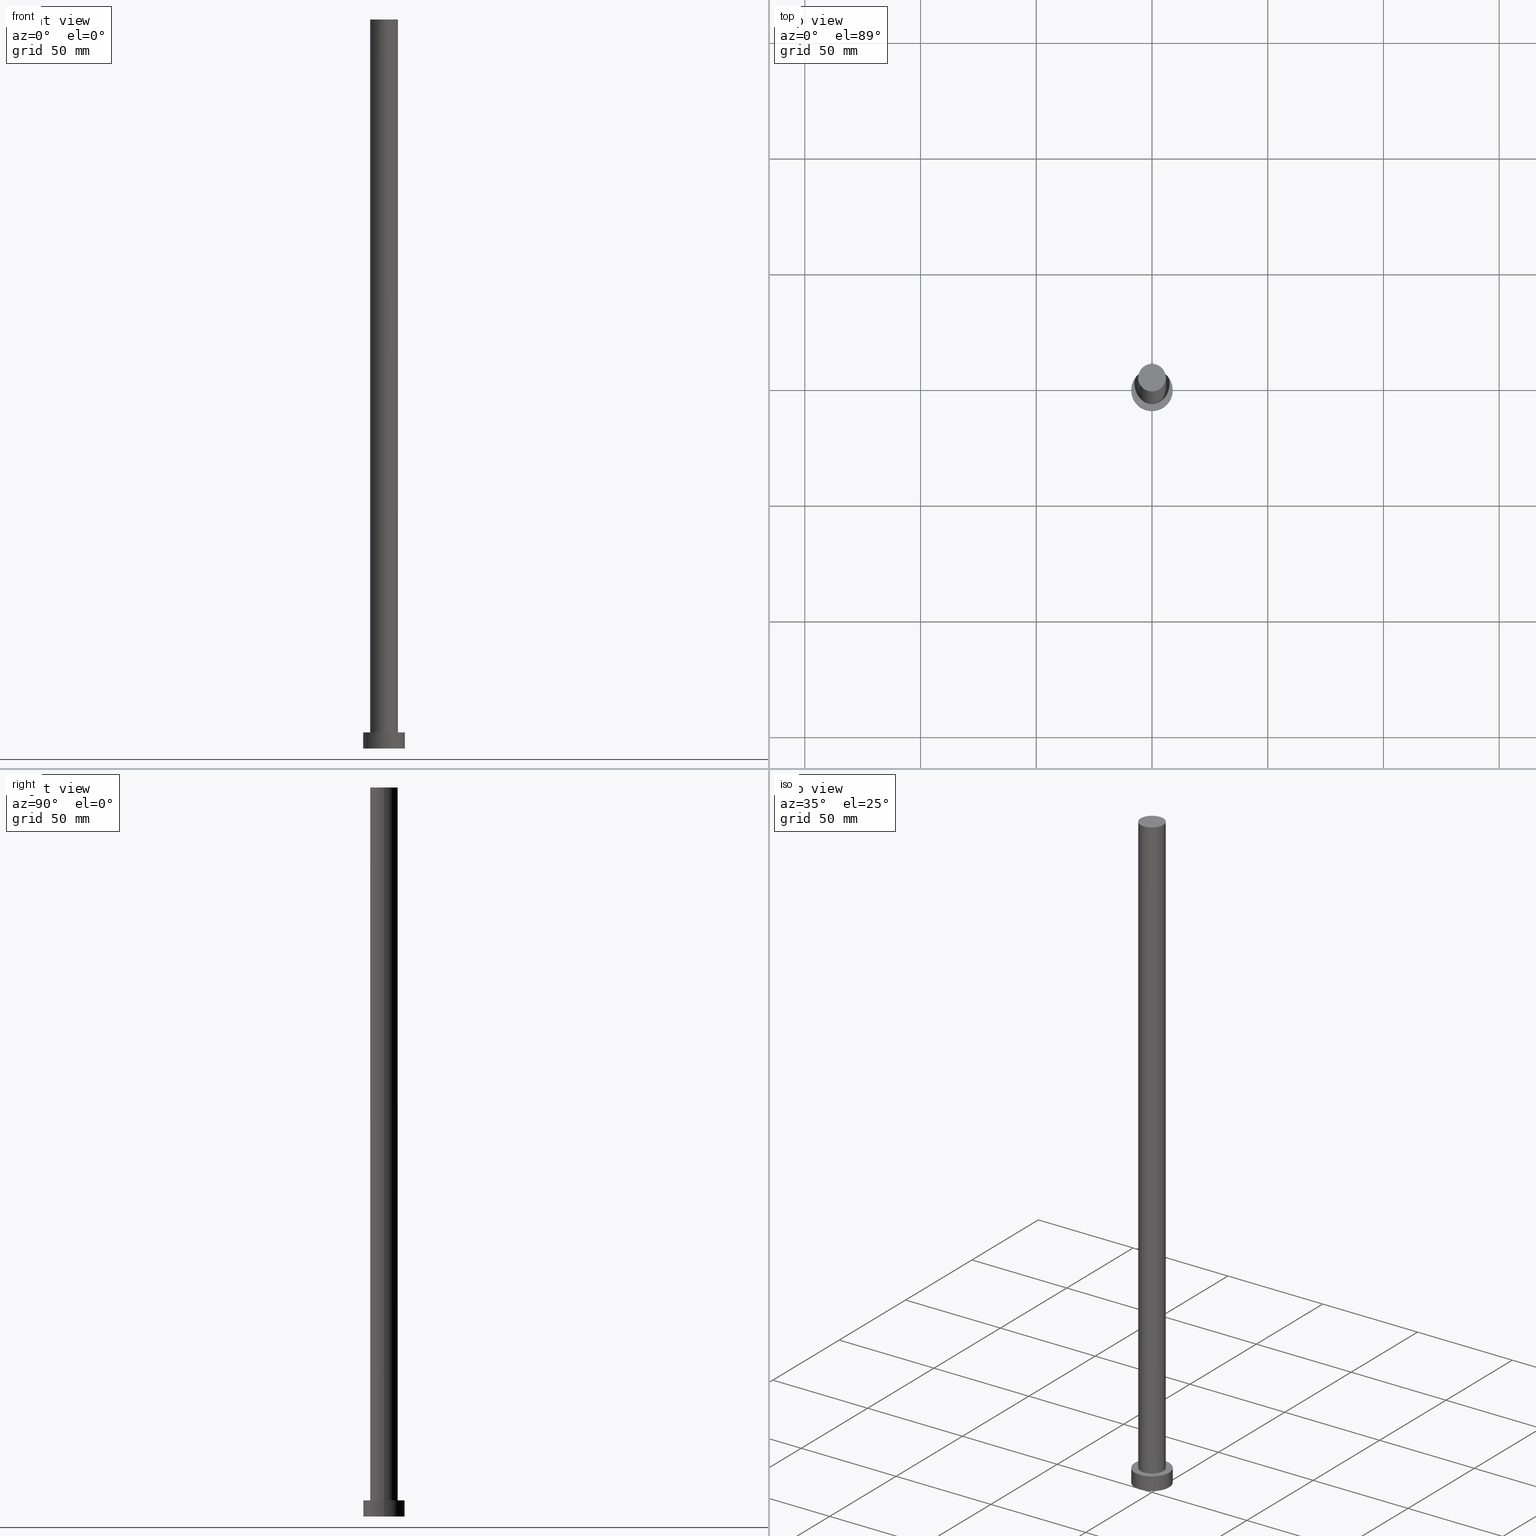
[diagram: canonical four-view strip — front | top / right | iso, engineering-drawing reading convention]
A machine part, canonical four-view strip (front | top / right | iso — engineering-drawing reading convention). The complete STEP part file that produces these views, byte-faithful:
ISO-10303-21;
HEADER;
FILE_DESCRIPTION (( 'STEP AP203' ),
    '1' );
FILE_NAME ('37f4.STEP',
    '2023-02-13T12:24:51',
    ( '' ),
    ( '' ),
    'SwSTEP 2.0',
    'SolidWorks 2019',
    '' );
FILE_SCHEMA (( 'CONFIG_CONTROL_DESIGN' ));
ENDSEC;

DATA;
#1 = APPROVAL_DATE_TIME ( #137, #232 ) ;
#2 = DIRECTION ( 'NONE',  ( 1.000000000000000000, 0.000000000000000000, 0.000000000000000000 ) ) ;
#3 = VERTEX_POINT ( 'NONE', #166 ) ;
#4 = CARTESIAN_POINT ( 'NONE',  ( 0.000000000000000000, 0.000000000000000000, 315.0000000000000000 ) ) ;
#5 = AXIS2_PLACEMENT_3D ( 'NONE', #197, #194, #216 ) ;
#6 = DIRECTION ( 'NONE',  ( 0.000000000000000000, 0.000000000000000000, 1.000000000000000000 ) ) ;
#7 = EDGE_CURVE ( 'NONE', #38, #24, #49, .T. ) ;
#8 = PERSON_AND_ORGANIZATION ( #89, #116 ) ;
#9 = FACE_OUTER_BOUND ( 'NONE', #26, .T. ) ;
#10 = PERSON_AND_ORGANIZATION_ROLE ( 'classification_officer' ) ;
#11 = CARTESIAN_POINT ( 'NONE',  ( 6.000000000000000888, 7.347880794884120722E-16, 315.0000000000000000 ) ) ;
#12 = EDGE_LOOP ( 'NONE', ( #167, #22, #139, #129 ) ) ;
#13 = AXIS2_PLACEMENT_3D ( 'NONE', #90, #233, #182 ) ;
#14 = DATE_TIME_ROLE ( 'classification_date' ) ;
#15 = CC_DESIGN_APPROVAL ( #40, ( #55 ) ) ;
#16 = DIRECTION ( 'NONE',  ( 0.000000000000000000, 0.000000000000000000, 1.000000000000000000 ) ) ;
#17 = FACE_OUTER_BOUND ( 'NONE', #65, .T. ) ;
#18 = CARTESIAN_POINT ( 'NONE',  ( -9.000000000000000000, 0.000000000000000000, 7.000000000000000000 ) ) ;
#19 = ORIENTED_EDGE ( 'NONE', *, *, #52, .F. ) ;
#20 = DIRECTION ( 'NONE',  ( 0.000000000000000000, 0.000000000000000000, 1.000000000000000000 ) ) ;
#21 = DATE_AND_TIME ( #120, #58 ) ;
#22 = ORIENTED_EDGE ( 'NONE', *, *, #217, .T. ) ;
#23 = CYLINDRICAL_SURFACE ( 'NONE', #161, 6.000000000000000888 ) ;
#24 = VERTEX_POINT ( 'NONE', #154 ) ;
#25 = DATE_TIME_ROLE ( 'creation_date' ) ;
#26 = EDGE_LOOP ( 'NONE', ( #144, #205, #230, #222 ) ) ;
#27 = CIRCLE ( 'NONE', #248, 9.000000000000000000 ) ;
#28 = DIRECTION ( 'NONE',  ( -0.000000000000000000, -0.000000000000000000, -1.000000000000000000 ) ) ;
#29 = ORIENTED_EDGE ( 'NONE', *, *, #52, .T. ) ;
#30 = SECURITY_CLASSIFICATION_LEVEL ( 'unclassified' ) ;
#31 = EDGE_CURVE ( 'NONE', #133, #38, #87, .T. ) ;
#32 = ADVANCED_FACE ( 'NONE', ( #210 ), #125, .T. ) ;
#33 = DIRECTION ( 'NONE',  ( 1.000000000000000000, 0.000000000000000000, 0.000000000000000000 ) ) ;
#34 = CARTESIAN_POINT ( 'NONE',  ( -6.000000000000000888, 0.000000000000000000, 315.0000000000000000 ) ) ;
#35 = PERSON_AND_ORGANIZATION ( #89, #116 ) ;
#36 = APPROVAL_DATE_TIME ( #228, #40 ) ;
#37 = LOCAL_TIME ( 13, 24, 51.00000000000000000, #147 ) ;
#38 = VERTEX_POINT ( 'NONE', #173 ) ;
#39 = CARTESIAN_POINT ( 'NONE',  ( 0.000000000000000000, 0.000000000000000000, 315.0000000000000000 ) ) ;
#40 = APPROVAL ( #81, 'NEUR�EN�' ) ;
#41 = DIRECTION ( 'NONE',  ( -1.000000000000000000, 0.000000000000000000, 0.000000000000000000 ) ) ;
#42 = ORIENTED_EDGE ( 'NONE', *, *, #79, .F. ) ;
#43 = DIRECTION ( 'NONE',  ( 0.000000000000000000, 0.000000000000000000, 1.000000000000000000 ) ) ;
#44 = ORIENTED_EDGE ( 'NONE', *, *, #97, .F. ) ;
#45 = AXIS2_PLACEMENT_3D ( 'NONE', #69, #20, #110 ) ;
#46 = FACE_OUTER_BOUND ( 'NONE', #212, .T. ) ;
#47 = ORIENTED_EDGE ( 'NONE', *, *, #51, .T. ) ;
#48 = DIRECTION ( 'NONE',  ( 1.000000000000000000, 0.000000000000000000, 0.000000000000000000 ) ) ;
#49 = CIRCLE ( 'NONE', #225, 9.000000000000000000 ) ;
#50 = CALENDAR_DATE ( 2023, 13, 2 ) ;
#51 = EDGE_CURVE ( 'NONE', #198, #231, #156, .T. ) ;
#52 = EDGE_CURVE ( 'NONE', #198, #3, #93, .T. ) ;
#53 = APPROVAL_STATUS ( 'not_yet_approved' ) ;
#54 = APPLICATION_PROTOCOL_DEFINITION ( 'international standard', 'config_control_design', 1994, #183 ) ;
#55 = PRODUCT_DEFINITION ( 'NEZN�M�', '', #68, #130 ) ;
#56 = APPLICATION_PROTOCOL_DEFINITION ( 'international standard', 'config_control_design', 1994, #95 ) ;
#57 = LINE ( 'NONE', #11, #170 ) ;
#58 = LOCAL_TIME ( 13, 24, 51.00000000000000000, #191 ) ;
#59 = DIRECTION ( 'NONE',  ( -0.000000000000000000, -0.000000000000000000, -1.000000000000000000 ) ) ;
#60 =( LENGTH_UNIT ( ) NAMED_UNIT ( * ) SI_UNIT ( .MILLI., .METRE. ) );
#61 = ORIENTED_EDGE ( 'NONE', *, *, #7, .F. ) ;
#62 = FACE_OUTER_BOUND ( 'NONE', #149, .T. ) ;
#63 = AXIS2_PLACEMENT_3D ( 'NONE', #121, #190, #199 ) ;
#64 = APPROVAL_PERSON_ORGANIZATION ( #35, #192, #250 ) ;
#65 = EDGE_LOOP ( 'NONE', ( #61, #66 ) ) ;
#66 = ORIENTED_EDGE ( 'NONE', *, *, #208, .F. ) ;
#67 = FACE_OUTER_BOUND ( 'NONE', #72, .T. ) ;
#68 = PRODUCT_DEFINITION_FORMATION_WITH_SPECIFIED_SOURCE ( 'LIBOVOLN�', '', #134, .NOT_KNOWN. ) ;
#69 = CARTESIAN_POINT ( 'NONE',  ( 0.000000000000000000, 0.000000000000000000, 7.000000000000000000 ) ) ;
#70 = PERSON_AND_ORGANIZATION ( #89, #116 ) ;
#71 = COORDINATED_UNIVERSAL_TIME_OFFSET ( 1, 0, .AHEAD. ) ;
#72 = EDGE_LOOP ( 'NONE', ( #200, #242 ) ) ;
#73 = CARTESIAN_POINT ( 'NONE',  ( 0.000000000000000000, 0.000000000000000000, 0.000000000000000000 ) ) ;
#74 = ADVANCED_FACE ( 'NONE', ( #17 ), #80, .F. ) ;
#75 = EDGE_LOOP ( 'NONE', ( #107, #44 ) ) ;
#76 = AXIS2_PLACEMENT_3D ( 'NONE', #73, #99, #186 ) ;
#77 = PERSON_AND_ORGANIZATION ( #89, #116 ) ;
#78 = LOCAL_TIME ( 13, 24, 51.00000000000000000, #184 ) ;
#79 = EDGE_CURVE ( 'NONE', #133, #209, #27, .T. ) ;
#80 = PLANE ( 'NONE',  #115 ) ;
#81 = APPROVAL_STATUS ( 'not_yet_approved' ) ;
#82 = CYLINDRICAL_SURFACE ( 'NONE', #255, 9.000000000000000000 ) ;
#83 = CIRCLE ( 'NONE', #13, 9.000000000000000000 ) ;
#84 = AXIS2_PLACEMENT_3D ( 'NONE', #241, #157, #48 ) ;
#85 = DIRECTION ( 'NONE',  ( 1.000000000000000000, 0.000000000000000000, -0.000000000000000000 ) ) ;
#86 = DIRECTION ( 'NONE',  ( -0.000000000000000000, -0.000000000000000000, -1.000000000000000000 ) ) ;
#87 = LINE ( 'NONE', #18, #122 ) ;
#88 = ADVANCED_FACE ( 'NONE', ( #62 ), #127, .T. ) ;
#89 = PERSON ( 'NEUR�EN�', 'NEUR�EN�', 'NEUR�EN�', ('NEUR�EN�'), ('NEUR�EN�'), ('NEUR�EN�') ) ;
#90 = CARTESIAN_POINT ( 'NONE',  ( 0.000000000000000000, 0.000000000000000000, 7.000000000000000000 ) ) ;
#91 = EDGE_CURVE ( 'NONE', #3, #198, #109, .T. ) ;
#92 = DIRECTION ( 'NONE',  ( -0.000000000000000000, -0.000000000000000000, -1.000000000000000000 ) ) ;
#93 = CIRCLE ( 'NONE', #143, 6.000000000000000888 ) ;
#94 = CLOSED_SHELL ( 'NONE', ( #32, #240, #88, #106, #74, #155, #247 ) ) ;
#95 = APPLICATION_CONTEXT ( 'configuration controlled 3d designs of mechanical parts and assemblies' ) ;
#96 = APPROVAL_STATUS ( 'not_yet_approved' ) ;
#97 = EDGE_CURVE ( 'NONE', #114, #231, #142, .T. ) ;
#98 = VECTOR ( 'NONE', #101, 1000.000000000000000 ) ;
#99 = DIRECTION ( 'NONE',  ( 0.000000000000000000, 0.000000000000000000, 1.000000000000000000 ) ) ;
#100 = CIRCLE ( 'NONE', #84, 6.000000000000000888 ) ;
#101 = DIRECTION ( 'NONE',  ( -0.000000000000000000, -0.000000000000000000, -1.000000000000000000 ) ) ;
#102 = EDGE_CURVE ( 'NONE', #209, #133, #83, .T. ) ;
#103 = DIRECTION ( 'NONE',  ( 1.000000000000000000, 0.000000000000000000, 0.000000000000000000 ) ) ;
#104 =( NAMED_UNIT ( * ) PLANE_ANGLE_UNIT ( ) SI_UNIT ( $, .RADIAN. ) );
#105 = CC_DESIGN_APPROVAL ( #232, ( #68 ) ) ;
#106 = ADVANCED_FACE ( 'NONE', ( #179, #67 ), #145, .T. ) ;
#107 = ORIENTED_EDGE ( 'NONE', *, *, #165, .F. ) ;
#108 = EDGE_LOOP ( 'NONE', ( #29, #168 ) ) ;
#109 = CIRCLE ( 'NONE', #243, 6.000000000000000888 ) ;
#110 = DIRECTION ( 'NONE',  ( 1.000000000000000000, 0.000000000000000000, 0.000000000000000000 ) ) ;
#111 = PRODUCT_RELATED_PRODUCT_CATEGORY ( 'detail', '', ( #134 ) ) ;
#112 = ORIENTED_EDGE ( 'NONE', *, *, #158, .F. ) ;
#113 = PERSON_AND_ORGANIZATION_ROLE ( 'creator' ) ;
#114 = VERTEX_POINT ( 'NONE', #163 ) ;
#115 = AXIS2_PLACEMENT_3D ( 'NONE', #124, #171, #85 ) ;
#116 = ORGANIZATION ( 'NEUR�EN�', 'NEUR�EN�', '' ) ;
#117 = CARTESIAN_POINT ( 'NONE',  ( -6.000000000000000888, 0.000000000000000000, 7.000000000000000000 ) ) ;
#118 = PERSON_AND_ORGANIZATION ( #89, #116 ) ;
#119 = CC_DESIGN_DATE_AND_TIME_ASSIGNMENT ( #136, #25, ( #55 ) ) ;
#120 = CALENDAR_DATE ( 2023, 13, 2 ) ;
#121 = CARTESIAN_POINT ( 'NONE',  ( 0.000000000000000000, 0.000000000000000000, 7.000000000000000000 ) ) ;
#122 = VECTOR ( 'NONE', #160, 1000.000000000000000 ) ;
#123 = PERSON_AND_ORGANIZATION_ROLE ( 'design_owner' ) ;
#124 = CARTESIAN_POINT ( 'NONE',  ( 0.000000000000000000, 0.000000000000000000, 0.000000000000000000 ) ) ;
#125 = CYLINDRICAL_SURFACE ( 'NONE', #202, 6.000000000000000888 ) ;
#126 = DIRECTION ( 'NONE',  ( -1.000000000000000000, 0.000000000000000000, 0.000000000000000000 ) ) ;
#127 = CYLINDRICAL_SURFACE ( 'NONE', #63, 9.000000000000000000 ) ;
#128 = FACE_OUTER_BOUND ( 'NONE', #108, .T. ) ;
#129 = ORIENTED_EDGE ( 'NONE', *, *, #51, .F. ) ;
#130 = DESIGN_CONTEXT ( 'detailed design', #95, 'design' ) ;
#131 = CALENDAR_DATE ( 2023, 13, 2 ) ;
#132 = DIRECTION ( 'NONE',  ( 1.000000000000000000, 0.000000000000000000, -0.000000000000000000 ) ) ;
#133 = VERTEX_POINT ( 'NONE', #146 ) ;
#134 = PRODUCT ( '37f4', '37f4', '', ( #169 ) ) ;
#135 = ORIENTED_EDGE ( 'NONE', *, *, #165, .T. ) ;
#136 = DATE_AND_TIME ( #236, #78 ) ;
#137 = DATE_AND_TIME ( #50, #37 ) ;
#138 = MANIFOLD_SOLID_BREP ( 'P�idat vysunut�m3', #94 ) ;
#139 = ORIENTED_EDGE ( 'NONE', *, *, #97, .T. ) ;
#140 = PERSON_AND_ORGANIZATION ( #89, #116 ) ;
#141 = CARTESIAN_POINT ( 'NONE',  ( 0.000000000000000000, 0.000000000000000000, 315.0000000000000000 ) ) ;
#142 = CIRCLE ( 'NONE', #45, 6.000000000000000888 ) ;
#143 = AXIS2_PLACEMENT_3D ( 'NONE', #39, #193, #103 ) ;
#144 = ORIENTED_EDGE ( 'NONE', *, *, #102, .F. ) ;
#145 = PLANE ( 'NONE',  #226 ) ;
#146 = CARTESIAN_POINT ( 'NONE',  ( -9.000000000000000000, 0.000000000000000000, 7.000000000000000000 ) ) ;
#147 = COORDINATED_UNIVERSAL_TIME_OFFSET ( 1, 0, .AHEAD. ) ;
#148 = DIRECTION ( 'NONE',  ( -1.000000000000000000, 0.000000000000000000, 0.000000000000000000 ) ) ;
#149 = EDGE_LOOP ( 'NONE', ( #112, #42, #218, #188 ) ) ;
#150 = LOCAL_TIME ( 13, 24, 51.00000000000000000, #152 ) ;
#151 = CC_DESIGN_PERSON_AND_ORGANIZATION_ASSIGNMENT ( #118, #10, ( #213 ) ) ;
#152 = COORDINATED_UNIVERSAL_TIME_OFFSET ( 1, 0, .AHEAD. ) ;
#153 = DIRECTION ( 'NONE',  ( 1.000000000000000000, 0.000000000000000000, 0.000000000000000000 ) ) ;
#154 = CARTESIAN_POINT ( 'NONE',  ( 9.000000000000000000, 1.102182119232617714E-15, 0.000000000000000000 ) ) ;
#155 = ADVANCED_FACE ( 'NONE', ( #46 ), #23, .T. ) ;
#156 = LINE ( 'NONE', #34, #180 ) ;
#157 = DIRECTION ( 'NONE',  ( 0.000000000000000000, 0.000000000000000000, 1.000000000000000000 ) ) ;
#158 = EDGE_CURVE ( 'NONE', #209, #24, #229, .T. ) ;
#159 = DIRECTION ( 'NONE',  ( 0.000000000000000000, 0.000000000000000000, 1.000000000000000000 ) ) ;
#160 = DIRECTION ( 'NONE',  ( -0.000000000000000000, -0.000000000000000000, -1.000000000000000000 ) ) ;
#161 = AXIS2_PLACEMENT_3D ( 'NONE', #4, #92, #148 ) ;
#162 = CC_DESIGN_PERSON_AND_ORGANIZATION_ASSIGNMENT ( #70, #204, ( #68 ) ) ;
#163 = CARTESIAN_POINT ( 'NONE',  ( 6.000000000000000888, 7.347880794884120722E-16, 7.000000000000000000 ) ) ;
#164 = APPROVAL_ROLE ( '' ) ;
#165 = EDGE_CURVE ( 'NONE', #231, #114, #100, .T. ) ;
#166 = CARTESIAN_POINT ( 'NONE',  ( 6.000000000000000888, 7.347880794884120722E-16, 315.0000000000000000 ) ) ;
#167 = ORIENTED_EDGE ( 'NONE', *, *, #91, .F. ) ;
#168 = ORIENTED_EDGE ( 'NONE', *, *, #91, .T. ) ;
#169 = MECHANICAL_CONTEXT ( 'NONE', #183, 'mechanical' ) ;
#170 = VECTOR ( 'NONE', #28, 1000.000000000000000 ) ;
#171 = DIRECTION ( 'NONE',  ( 0.000000000000000000, 0.000000000000000000, 1.000000000000000000 ) ) ;
#172 = APPROVAL_PERSON_ORGANIZATION ( #140, #40, #239 ) ;
#173 = CARTESIAN_POINT ( 'NONE',  ( -9.000000000000000000, 0.000000000000000000, 0.000000000000000000 ) ) ;
#174 = PLANE ( 'NONE',  #5 ) ;
#175 = CC_DESIGN_PERSON_AND_ORGANIZATION_ASSIGNMENT ( #77, #123, ( #134 ) ) ;
#176 =( NAMED_UNIT ( * ) SI_UNIT ( $, .STERADIAN. ) SOLID_ANGLE_UNIT ( ) );
#177 = CC_DESIGN_SECURITY_CLASSIFICATION ( #213, ( #68 ) ) ;
#178 = UNCERTAINTY_MEASURE_WITH_UNIT (LENGTH_MEASURE( 1.000000000000000082E-05 ), #60, 'distance_accuracy_value', 'NONE');
#179 = FACE_BOUND ( 'NONE', #75, .T. ) ;
#180 = VECTOR ( 'NONE', #59, 1000.000000000000000 ) ;
#181 = PERSON_AND_ORGANIZATION ( #89, #116 ) ;
#182 = DIRECTION ( 'NONE',  ( 1.000000000000000000, 0.000000000000000000, 0.000000000000000000 ) ) ;
#183 = APPLICATION_CONTEXT ( 'configuration controlled 3d designs of mechanical parts and assemblies' ) ;
#184 = COORDINATED_UNIVERSAL_TIME_OFFSET ( 1, 0, .AHEAD. ) ;
#185 = CARTESIAN_POINT ( 'NONE',  ( -6.000000000000000888, 0.000000000000000000, 315.0000000000000000 ) ) ;
#186 = DIRECTION ( 'NONE',  ( 1.000000000000000000, 0.000000000000000000, 0.000000000000000000 ) ) ;
#187 =( GEOMETRIC_REPRESENTATION_CONTEXT ( 3 ) GLOBAL_UNCERTAINTY_ASSIGNED_CONTEXT ( ( #178 ) ) GLOBAL_UNIT_ASSIGNED_CONTEXT ( ( #60, #104, #176 ) ) REPRESENTATION_CONTEXT ( 'NONE', 'WORKASPACE' ) );
#188 = ORIENTED_EDGE ( 'NONE', *, *, #7, .T. ) ;
#189 = CC_DESIGN_PERSON_AND_ORGANIZATION_ASSIGNMENT ( #245, #113, ( #55 ) ) ;
#190 = DIRECTION ( 'NONE',  ( -0.000000000000000000, -0.000000000000000000, -1.000000000000000000 ) ) ;
#191 = COORDINATED_UNIVERSAL_TIME_OFFSET ( 1, 0, .AHEAD. ) ;
#192 = APPROVAL ( #53, 'NEUR�EN�' ) ;
#193 = DIRECTION ( 'NONE',  ( 0.000000000000000000, 0.000000000000000000, 1.000000000000000000 ) ) ;
#194 = DIRECTION ( 'NONE',  ( 0.000000000000000000, 0.000000000000000000, 1.000000000000000000 ) ) ;
#195 = CC_DESIGN_PERSON_AND_ORGANIZATION_ASSIGNMENT ( #181, #238, ( #68 ) ) ;
#196 = AXIS2_PLACEMENT_3D ( 'NONE', #207, #16, #33 ) ;
#197 = CARTESIAN_POINT ( 'NONE',  ( 0.000000000000000000, 0.000000000000000000, 315.0000000000000000 ) ) ;
#198 = VERTEX_POINT ( 'NONE', #185 ) ;
#199 = DIRECTION ( 'NONE',  ( -1.000000000000000000, 0.000000000000000000, 0.000000000000000000 ) ) ;
#200 = ORIENTED_EDGE ( 'NONE', *, *, #79, .T. ) ;
#201 = ORIENTED_EDGE ( 'NONE', *, *, #217, .F. ) ;
#202 = AXIS2_PLACEMENT_3D ( 'NONE', #141, #211, #41 ) ;
#203 = CARTESIAN_POINT ( 'NONE',  ( 9.000000000000000000, 1.102182119232617714E-15, 7.000000000000000000 ) ) ;
#204 = PERSON_AND_ORGANIZATION_ROLE ( 'design_supplier' ) ;
#205 = ORIENTED_EDGE ( 'NONE', *, *, #158, .T. ) ;
#206 = APPROVAL_PERSON_ORGANIZATION ( #8, #232, #164 ) ;
#207 = CARTESIAN_POINT ( 'NONE',  ( 0.000000000000000000, 0.000000000000000000, 0.000000000000000000 ) ) ;
#208 = EDGE_CURVE ( 'NONE', #24, #38, #253, .T. ) ;
#209 = VERTEX_POINT ( 'NONE', #203 ) ;
#210 = FACE_OUTER_BOUND ( 'NONE', #12, .T. ) ;
#211 = DIRECTION ( 'NONE',  ( -0.000000000000000000, -0.000000000000000000, -1.000000000000000000 ) ) ;
#212 = EDGE_LOOP ( 'NONE', ( #201, #19, #47, #135 ) ) ;
#213 = SECURITY_CLASSIFICATION ( '', '', #30 ) ;
#214 = ADVANCED_BREP_SHAPE_REPRESENTATION ( '37f4', ( #138, #196 ), #187 ) ;
#215 = CC_DESIGN_APPROVAL ( #192, ( #213 ) ) ;
#216 = DIRECTION ( 'NONE',  ( 1.000000000000000000, 0.000000000000000000, -0.000000000000000000 ) ) ;
#217 = EDGE_CURVE ( 'NONE', #3, #114, #57, .T. ) ;
#218 = ORIENTED_EDGE ( 'NONE', *, *, #31, .T. ) ;
#219 = APPROVAL_DATE_TIME ( #21, #192 ) ;
#220 = CARTESIAN_POINT ( 'NONE',  ( 0.000000000000000000, 0.000000000000000000, 7.000000000000000000 ) ) ;
#221 = LOCAL_TIME ( 13, 24, 51.00000000000000000, #71 ) ;
#222 = ORIENTED_EDGE ( 'NONE', *, *, #31, .F. ) ;
#223 = PRODUCT_DEFINITION_SHAPE ( 'NONE', 'NONE',  #55 ) ;
#224 = CARTESIAN_POINT ( 'NONE',  ( 9.000000000000000000, 1.102182119232617714E-15, 7.000000000000000000 ) ) ;
#225 = AXIS2_PLACEMENT_3D ( 'NONE', #246, #244, #153 ) ;
#226 = AXIS2_PLACEMENT_3D ( 'NONE', #220, #43, #132 ) ;
#227 = CALENDAR_DATE ( 2023, 13, 2 ) ;
#228 = DATE_AND_TIME ( #227, #221 ) ;
#229 = LINE ( 'NONE', #224, #98 ) ;
#230 = ORIENTED_EDGE ( 'NONE', *, *, #208, .T. ) ;
#231 = VERTEX_POINT ( 'NONE', #117 ) ;
#232 = APPROVAL ( #96, 'NEUR�EN�' ) ;
#233 = DIRECTION ( 'NONE',  ( 0.000000000000000000, 0.000000000000000000, 1.000000000000000000 ) ) ;
#234 = DATE_AND_TIME ( #131, #150 ) ;
#235 = SHAPE_DEFINITION_REPRESENTATION ( #223, #214 ) ;
#236 = CALENDAR_DATE ( 2023, 13, 2 ) ;
#237 = CARTESIAN_POINT ( 'NONE',  ( 0.000000000000000000, 0.000000000000000000, 315.0000000000000000 ) ) ;
#238 = PERSON_AND_ORGANIZATION_ROLE ( 'creator' ) ;
#239 = APPROVAL_ROLE ( '' ) ;
#240 = ADVANCED_FACE ( 'NONE', ( #9 ), #82, .T. ) ;
#241 = CARTESIAN_POINT ( 'NONE',  ( 0.000000000000000000, 0.000000000000000000, 7.000000000000000000 ) ) ;
#242 = ORIENTED_EDGE ( 'NONE', *, *, #102, .T. ) ;
#243 = AXIS2_PLACEMENT_3D ( 'NONE', #237, #6, #2 ) ;
#244 = DIRECTION ( 'NONE',  ( 0.000000000000000000, 0.000000000000000000, 1.000000000000000000 ) ) ;
#245 = PERSON_AND_ORGANIZATION ( #89, #116 ) ;
#246 = CARTESIAN_POINT ( 'NONE',  ( 0.000000000000000000, 0.000000000000000000, 0.000000000000000000 ) ) ;
#247 = ADVANCED_FACE ( 'NONE', ( #128 ), #174, .T. ) ;
#248 = AXIS2_PLACEMENT_3D ( 'NONE', #254, #159, #251 ) ;
#249 = CC_DESIGN_DATE_AND_TIME_ASSIGNMENT ( #234, #14, ( #213 ) ) ;
#250 = APPROVAL_ROLE ( '' ) ;
#251 = DIRECTION ( 'NONE',  ( 1.000000000000000000, 0.000000000000000000, 0.000000000000000000 ) ) ;
#252 = CARTESIAN_POINT ( 'NONE',  ( 0.000000000000000000, 0.000000000000000000, 7.000000000000000000 ) ) ;
#253 = CIRCLE ( 'NONE', #76, 9.000000000000000000 ) ;
#254 = CARTESIAN_POINT ( 'NONE',  ( 0.000000000000000000, 0.000000000000000000, 7.000000000000000000 ) ) ;
#255 = AXIS2_PLACEMENT_3D ( 'NONE', #252, #86, #126 ) ;
ENDSEC;
END-ISO-10303-21;
